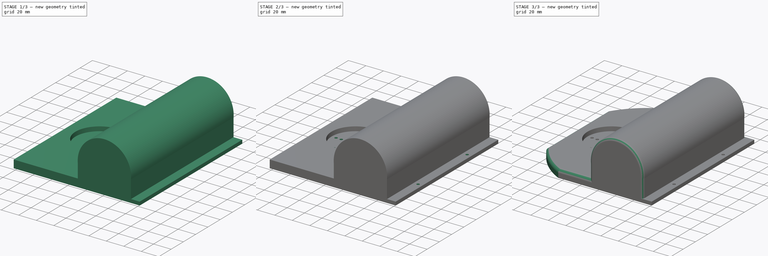
[diagram: build sequence overview — one tinted view per stage of 3, left to right]
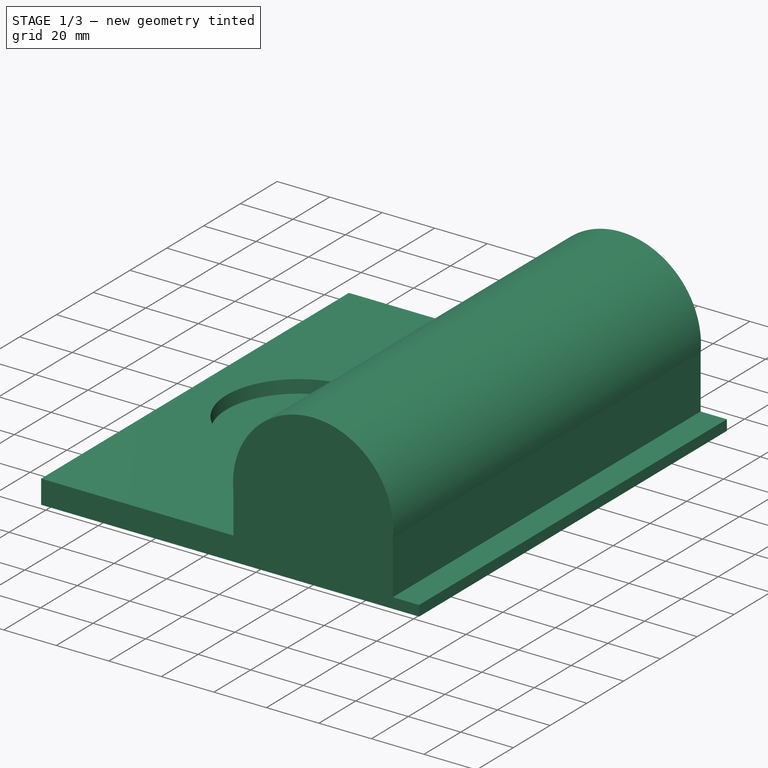
[diagram: stage 1 of 3 — iso view after this stage's code; geometry added in this stage tinted green]
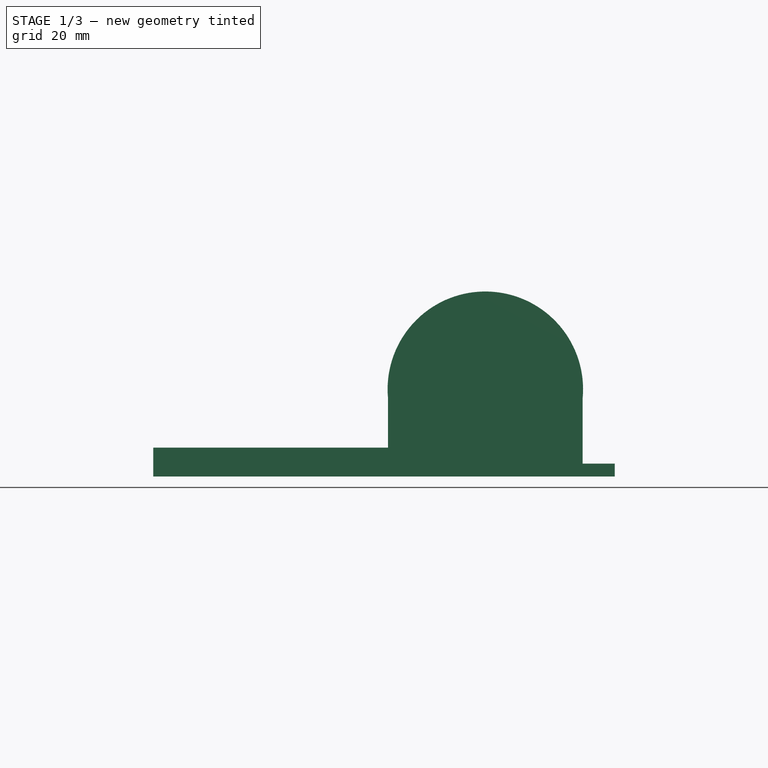
[diagram: stage 1 of 3 — front view after this stage's code; geometry added in this stage tinted green]
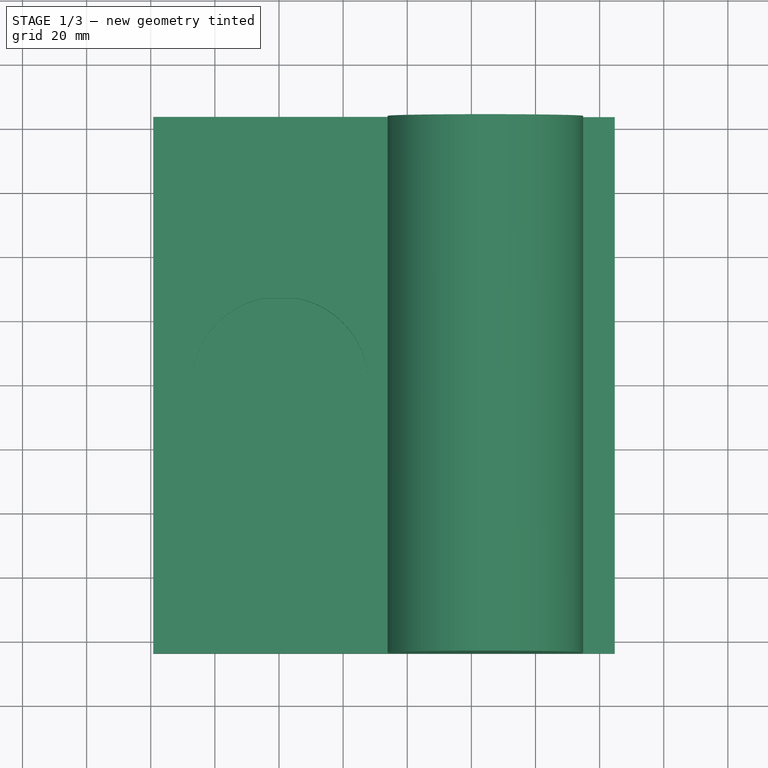
[diagram: stage 1 of 3 — top view after this stage's code; geometry added in this stage tinted green]
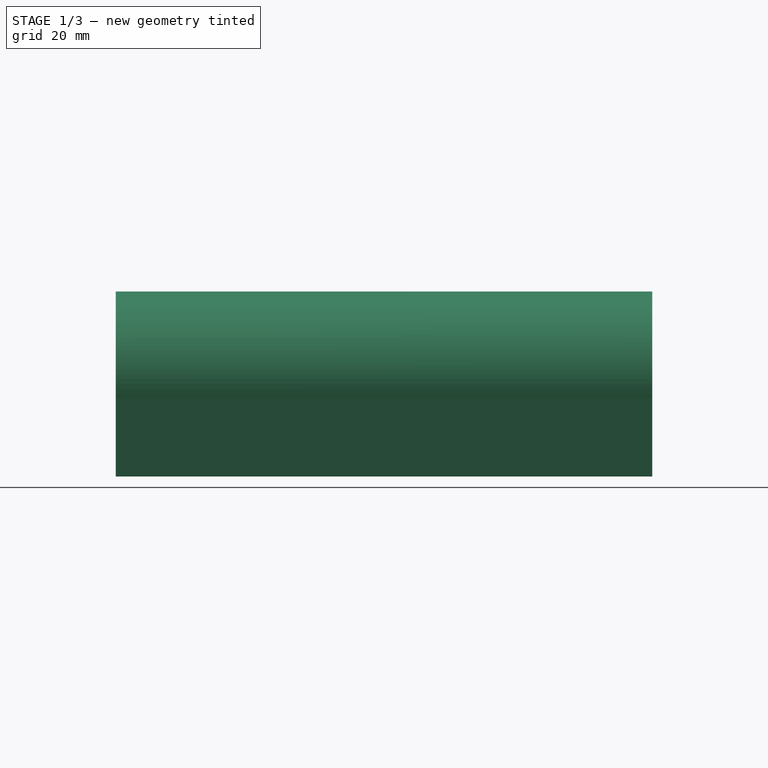
[diagram: stage 1 of 3 — right view after this stage's code; geometry added in this stage tinted green]
FCSTD DOCUMENT  (FreeCAD 0.20R29177 +426 (Git))
Label: base_weight_holder
License: All rights reserved
LicenseURL: http://en.wikipedia.org/wiki/All_rights_reserved
objects: Sketcher::SketchObject×6, PartDesign::Pocket×5, Spreadsheet::Sheet×3, PartDesign::Fillet×2, PartDesign::Pad×1, PartDesign::Body×1
note: 23 computed .brp shape members not serialized (recipe doc carries the construction recipe); baked Part::Feature solids carry a one-line shape summary decoded from their .brp
EXTERNAL_REF file=l_stick_end.FCStd obj=Sketch002

FEATURE [Spreadsheet::Sheet] Spreadsheet  label="weight_data"
  cells = A1=Name; B1=Value; A2=cap_xlen; B2(cap_xlen)==51.88mm; A3=cap_ylen; B3(cap_ylen)==48.1mm; A4=cap_zlen; B4(cap_zlen)==33.12mm; A5=shaft_dia; B5(shaft_dia)==28.84mm; A6=shaft_zlen; B6(shaft_zlen)==82.14mm; A7=full_zlen; B7(full_zlen)==154.15mm; A8=cap_top_xlen; B8(cap_top_xlen)==27.7mm; A9=space; B9(space)==0.6mm
FEATURE [Sketcher::SketchObject] Sketch
  FullyConstrained = true
  MapMode = 5
  Placement = pos=(0,0,0) rot=(1,0,0;1.5708rad)
  Support = -> [XZ_Plane]
  expr: .Constraints.curve_ylen = <<base_data>>.wall_thick / 2
  expr: .Constraints.in_mid_ylen = .Constraints.in_ylen / 2
  expr: .Constraints.in_xlen = <<weight_data>>.cap_ylen + <<weight_data>>.space
  expr: .Constraints.in_xlen_top = <<weight_data>>.cap_top_xlen + <<weight_data>>.space
  expr: .Constraints.in_ylen = <<weight_data>>.cap_ylen + <<weight_data>>.space
  expr: .Constraints.l_xlen = Sketch002.Constraints.full_xlen + <<base_data>>.wall_thick
  expr: .Constraints.r_pad_xlen = <<base_data>>.back_side_lip
  expr: .Constraints.thick_ylen = <<base_data>>.base_thick
  expr: .Constraints.wall_thick = <<base_data>>.wall_thick
  expr: Constraints[78] = <<base_data>>.small_base_thick
  sketch-geometry (29):
    g0: LineSegment StartX=0 StartY=0 StartZ=0 EndX=24.35 EndY=0 EndZ=0
    g1: LineSegment StartX=24.35 StartY=0 StartZ=0 EndX=48.7 EndY=0 EndZ=0
    g2: LineSegment StartX=24.35 StartY=0 StartZ=0 EndX=24.35 EndY=51.7 EndZ=0
    g3: LineSegment StartX=10.2 StartY=48.7 StartZ=0 EndX=24.35 EndY=48.7 EndZ=0
    g4: LineSegment StartX=38.5 StartY=48.7 StartZ=0 EndX=24.35 EndY=48.7 EndZ=0
    g5: LineSegment StartX=48.7 StartY=24.35 StartZ=0 EndX=0 EndY=24.35 EndZ=0
    g6: LineSegment StartX=48.7 StartY=0 StartZ=0 EndX=54.7 EndY=0 EndZ=0
    g7: ArcOfCircle CenterX=24.35 CenterY=27.2151 CenterZ=0 NormalX=0 NormalY=0 NormalZ=1 AngleXU=0 Radius=30.4849 StartAngle=6.18906 EndAngle=9.5189
    g8: LineSegment StartX=48.7 StartY=24.35 StartZ=0 EndX=54.7 EndY=24.35 EndZ=0
    g9: LineSegment StartX=0 StartY=24.35 StartZ=0 EndX=-6 EndY=24.35 EndZ=0
    g10: LineSegment StartX=24.35 StartY=51.7 StartZ=0 EndX=24.35 EndY=57.7 EndZ=0
    g11: LineSegment StartX=-6 StartY=24.35 StartZ=0 EndX=-6 EndY=9 EndZ=0
    g12: LineSegment StartX=-6 StartY=9 StartZ=0 EndX=-79.2077 EndY=9 EndZ=0
    g13: LineSegment StartX=-79.2077 StartY=0 StartZ=0 EndX=0 EndY=0 EndZ=0
    g14: LineSegment StartX=0 StartY=0 StartZ=0 EndX=0 EndY=24.35 EndZ=0
    g15: LineSegment StartX=48.7 StartY=0 StartZ=0 EndX=48.7 EndY=24.35 EndZ=0
    g16: ArcOfCircle CenterX=24.35 CenterY=16.8296 CenterZ=0 NormalX=0 NormalY=0 NormalZ=1 AngleXU=0 Radius=34.8704 StartAngle=1.15296 EndAngle=1.98864
    g17: LineSegment StartX=-6 StartY=9 StartZ=0 EndX=-6 EndY=0 EndZ=0
    g18: LineSegment StartX=-79.2077 StartY=9 StartZ=0 EndX=-79.2077 EndY=0 EndZ=0
    g19: GeomPoint X=24.35 Y=24.35 Z=0
    g20: LineSegment StartX=38.5 StartY=48.7 StartZ=0 EndX=48.7 EndY=24.35 EndZ=0
    g21: LineSegment StartX=10.2 StartY=48.7 StartZ=0 EndX=0 EndY=24.35 EndZ=0
    g22: LineSegment StartX=0 StartY=0 StartZ=0 EndX=48.7 EndY=0 EndZ=0
    g23: LineSegment StartX=54.7 StartY=0 StartZ=0 EndX=54.7 EndY=24.35 EndZ=0
    g24: LineSegment StartX=54.7 StartY=24.35 StartZ=0 EndX=54.7 EndY=4 EndZ=0
    g25: LineSegment StartX=54.7 StartY=4 StartZ=0 EndX=64.7 EndY=4 EndZ=0
    g26: LineSegment StartX=64.7 StartY=0 StartZ=0 EndX=54.7 EndY=0 EndZ=0
    g27: LineSegment StartX=64.7 StartY=4 StartZ=0 EndX=64.7 EndY=0 EndZ=0
    g28: LineSegment StartX=-79.2077 StartY=0 StartZ=0 EndX=-79.2077 EndY=9 EndZ=0
  constraints (82):
    c: Coincident(g0,g-1)
    c: PointOnObject(g0,g-1)
    c: Coincident(g1,g0)
    c: Coincident(g2,g0)
    c: Vertical(g2)
    c: PointOnObject(g5,g-2)
    c: PointOnObject(g3,g2)
    c: Horizontal(g3)
    c: Coincident(g4,g3)
    c: Horizontal(g4)
    c: DistanceY(g0,g3) = 48.7  'in_ylen'
    c: DistanceX(g0,g1) = 48.7  'in_xlen'
    c: Horizontal(g5)
    c: PointOnObject(g6,g-1)
    c: PointOnObject(g7,g2)
    c: Horizontal(g8)
    c: Coincident(g9,g7)
    c: Horizontal(g9)
    c: Coincident(g10,g2)
    c: PointOnObject(g10,g7)
    c: Vertical(g10)
    c: Equal(g10,g8)
    c: Coincident(g11,g7)
    c: Vertical(g11)
    c: Coincident(g12,g11)
    c: Horizontal(g12)
    c: PointOnObject(g13,g-1)
    c: Coincident(g14,g13)
    c: Coincident(g15,g6)
    c: Vertical(g15)
    c: Coincident(g6,g1)
    c: Coincident(g13,g0)
    c: Coincident(g5,g8)
    c: Coincident(g15,g5)
    c: Coincident(g14,g9)
    c: Coincident(g5,g9)
    c: PointOnObject(g16,g2)
    c: Coincident(g16,g3)
    c: Coincident(g16,g4)
    c: PointOnObject(g2,g16)
    c: DistanceX(g3,g4) = 28.3  'in_xlen_top'
    c: Coincident(g17,g11)
    c: PointOnObject(g17,g13)
    c: Vertical(g17)
    c: DistanceY(g17,g17) = 9  'thick_ylen'
    c: Coincident(g18,g12)
    c: Coincident(g18,g13)
    c: Vertical(g18)
    c: DistanceX(g6,g6) = 6  'wall_thick'
    c: DistanceY(g3,g2) = 3  'curve_ylen'
    c: PointOnObject(g19,g5)
    c: PointOnObject(g19,g2)
    c: DistanceY(g0,g19) = 24.35  'in_mid_ylen'
    c: Coincident(g20,g4)
    c: Coincident(g20,g5)
    c: Coincident(g21,g3)
    c: Coincident(g21,g5)
    c: Equal(g0,g1)
    c: PointOnObject(g6,g-1)
    c: Coincident(g22,g13)
    c: Coincident(g22,g6)
    c: Coincident(g7,g8)
    c: Coincident(g23,g6)
    c: Coincident(g7,g23)
    c: Vertical(g23)
    c: DistanceX(g13,g6) = 54.7  'end_ylen'
    c: Coincident(g24,g7)
    c: Coincident(g24,g25)
    c: Horizontal(g25)
    c: PointOnObject(g26,g-1)
    c: Coincident(g26,g6)
    c: Coincident(g27,g25)
    c: Coincident(g27,g26)
    c: Vertical(g27)
    c: DistanceX(g26,g26) = 10  'r_pad_xlen'
    c: DistanceX(g13,g26) = 143.908  'full_full_xlen'
    c: DistanceX(g12,g11) = 73.2077  'l_xlen'
    c: PointOnObject(g24,g23)
    c: DistanceY(g27,g27) = 4
    c: DistanceX(g13,g13) = 79.2077  'full_l_xlen'
    c: Coincident(g28,g13)
    c: Coincident(g28,g12)
FEATURE [PartDesign::Pad] Pad
  Direction = (0,-1,2e-16)
  Length = 167.35
  Length2 = 10
  Midplane = true
  Placement = pos=(0,0,0) rot=(1,0,0;1.5708rad)
  Profile = -> Sketch
  ReferenceAxis = -> Sketch [N_Axis]
  Type = 0
  expr: Length = <<weight_data>>.full_zlen + <<weight_data>>.space * 2 + <<base_data>>.wall_thick * 2
FEATURE [Spreadsheet::Sheet] Spreadsheet001  label="base_data"
  cells = A1=Name; B1=Value; A2=wall_thick; B2(wall_thick)==6mm; A3=base_thick; B3(base_thick)==9mm; A4=back_side_lip; B4(back_side_lip)==10mm; A5=small_base_thick; B5(small_base_thick)==4mm; A7=stick_cut; B7(stick_cut)==5mm; A8=r_hole_ylen; B8(r_hole_ylen)==40mm
FEATURE [Sketcher::SketchObject] Sketch001
  FullyConstrained = true
  MapMode = 5
  Placement = pos=(0,0,0) rot=(1,0,0;1.5708rad)
  Support = -> [XZ_Plane]
  expr: Constraints[11] = <<Sketch>>.Constraints.in_ylen
  expr: Constraints[17] = Sketch.Constraints.in_xlen_top
  expr: Constraints[29] = Sketch.Constraints.curve_ylen
  expr: Constraints[32] = Sketch.Constraints.in_mid_ylen
  expr: Constraints[6] = <<Sketch>>.Constraints.in_xlen
  expr: Constraints[8] = Sketch.Constraints.wall_thick
  sketch-geometry (14):
    g0: LineSegment StartX=0 StartY=0 StartZ=0 EndX=24.35 EndY=0 EndZ=0
    g1: LineSegment StartX=24.35 StartY=0 StartZ=0 EndX=48.7 EndY=0 EndZ=0
    g2: LineSegment StartX=48.7 StartY=0 StartZ=0 EndX=54.7 EndY=0 EndZ=0
    g3: LineSegment StartX=24.35 StartY=0 StartZ=0 EndX=24.35 EndY=48.7 EndZ=0
    g4: LineSegment StartX=24.35 StartY=48.7 StartZ=0 EndX=10.2 EndY=48.7 EndZ=0
    g5: LineSegment StartX=24.35 StartY=48.7 StartZ=0 EndX=38.5 EndY=48.7 EndZ=0
    g6: LineSegment StartX=48.7 StartY=0 StartZ=0 EndX=0 EndY=0 EndZ=0
    g7: LineSegment StartX=0 StartY=0 StartZ=0 EndX=0 EndY=24.35 EndZ=0
    g8: LineSegment StartX=48.7 StartY=0 StartZ=0 EndX=48.7 EndY=24.35 EndZ=0
    g9: LineSegment StartX=0 StartY=24.35 StartZ=0 EndX=48.7 EndY=24.35 EndZ=0
    g10: ArcOfCircle CenterX=24.35 CenterY=16.8296 CenterZ=0 NormalX=0 NormalY=0 NormalZ=1 AngleXU=0 Radius=34.8704 StartAngle=1.15296 EndAngle=1.98864
    g11: LineSegment StartX=24.35 StartY=48.7 StartZ=0 EndX=24.35 EndY=51.7 EndZ=0
    g12: LineSegment StartX=38.5 StartY=48.7 StartZ=0 EndX=48.7 EndY=24.35 EndZ=0
    g13: LineSegment StartX=10.2 StartY=48.7 StartZ=0 EndX=0 EndY=24.35 EndZ=0
  constraints (38):
    c: Horizontal(g0)
    c: Coincident(g1,g0)
    c: PointOnObject(g1,g-1)
    c: Coincident(g2,g1)
    c: Horizontal(g2)
    c: Equal(g0,g1)
    c: DistanceX(g0,g1) = 48.7
    c: Coincident(g0,g-1)
    c: DistanceX(g2,g2) = 6
    c: Coincident(g3,g0)
    c: Vertical(g3)
    c: DistanceY(g3,g3) = 48.7
    c: Coincident(g4,g3)
    c: Horizontal(g4)
    c: Coincident(g5,g3)
    c: Horizontal(g5)
    c: Equal(g5,g4)
    c: DistanceX(g4,g5) = 28.3
    c: Coincident(g6,g1)
    c: Coincident(g6,g0)
    c: Coincident(g7,g6)
    c: PointOnObject(g7,g-2)
    c: Coincident(g8,g6)
    c: Vertical(g8)
    c: Coincident(g9,g8)
    c: Horizontal(g9)
    c: Coincident(g11,g3)
    c: PointOnObject(g11,g10)
    c: Vertical(g11)
    c: DistanceY(g11,g11) = 3
    c: Coincident(g10,g5)
    c: Coincident(g10,g4)
    c: DistanceY(g7,g7) = 24.35
    c: Coincident(g7,g9)
    c: Coincident(g12,g10)
    c: Coincident(g12,g8)
    c: Coincident(g13,g10)
    c: Coincident(g13,g7)
FEATURE [PartDesign::Pocket] Pocket
  BaseFeature = -> Pad
  Direction = (0,1,-2e-16)
  Length = 155.95
  Length2 = 5
  Midplane = true
  Placement = pos=(0,0,0) rot=(1,0,0;1.5708rad)
  Profile = -> Sketch001
  ReferenceAxis = -> Sketch001 [N_Axis]
  Type = 0
  expr: Length = <<weight_data>>.full_zlen + <<weight_data>>.space * 3
FEATURE [Sketcher::SketchObject] Sketch002
  AttachmentOffset = pos=(0,0,9) rot=(0,0,1;0rad)
  FullyConstrained = true
  MapMode = 5
  Placement = pos=(0,0,9) rot=(0,0,1;0rad)
  Support = -> [XY_Plane]
  expr: .AttachmentOffset.Base.z = <<base_data>>.base_thick
  expr: .Constraints.wall_space = <<base_data>>.wall_thick * 2
  expr: Constraints[15] = l_stick_end#Sketch002.Constraints.thick_ylen + <<weight_data>>.space
  expr: Constraints[17] = 53mm + <<weight_data>>.space * 2
  sketch-geometry (11):
    g0: LineSegment StartX=0 StartY=0 StartZ=0 EndX=-12 EndY=0 EndZ=0
    g1: LineSegment StartX=-12 StartY=0 StartZ=0 EndX=-39.6038 EndY=0 EndZ=0
    g2: LineSegment StartX=-67.2077 StartY=0 StartZ=0 EndX=-39.6038 EndY=0 EndZ=0
    g3: LineSegment StartX=-34.3538 StartY=27.1 StartZ=0 EndX=-34.3538 EndY=-27.1 EndZ=0
    g4: LineSegment StartX=-34.3538 StartY=27.1 StartZ=0 EndX=-39.6038 EndY=27.1 EndZ=0
    g5: LineSegment StartX=-39.6038 StartY=27.1 StartZ=0 EndX=-44.8538 EndY=27.1 EndZ=0
    g6: LineSegment StartX=-39.6038 StartY=0 StartZ=0 EndX=-39.6038 EndY=27.1 EndZ=0
    g7: LineSegment StartX=-44.8538 StartY=-27.1 StartZ=0 EndX=-34.3538 EndY=-27.1 EndZ=0
    g8: LineSegment StartX=-44.8538 StartY=27.1 StartZ=0 EndX=-44.8538 EndY=-27.1 EndZ=0
    g9: ArcOfCircle CenterX=-39.6038 CenterY=0 CenterZ=0 NormalX=0 NormalY=0 NormalZ=1 AngleXU=0 Radius=27.6038 StartAngle=1.76215 EndAngle=4.52103
    g10: ArcOfCircle CenterX=-39.6038 CenterY=0 CenterZ=0 NormalX=0 NormalY=0 NormalZ=1 AngleXU=0 Radius=27.6038 StartAngle=4.90375 EndAngle=7.66263
  constraints (32):
    c: Coincident(g0,g-1)
    c: PointOnObject(g0,g-1)
    c: Coincident(g1,g0)
    c: PointOnObject(g1,g-1)
    c: PointOnObject(g2,g-1)
    c: Coincident(g2,g1)
    c: Equal(g1,g2)
    c: Vertical(g3)
    c: Horizontal(g4)
    c: Coincident(g5,g4)
    c: Horizontal(g5)
    c: Coincident(g6,g1)
    c: Coincident(g6,g4)
    c: Vertical(g6)
    c: Equal(g5,g4)
    c: DistanceX(g4,g4) = 5.25
    c: Vertical(g8)
    c: DistanceY(g8,g8) = 54.2
    c: Coincident(g8,g5)
    c: Coincident(g8,g7)
    c: DistanceX(g0,g0) = 12  'wall_space'
    c: DistanceX(g2,g0) = 67.2077  'full_xlen'
    c: DistanceX(g2,g0) = 55.2077  'in_xlen'
    c: Coincident(g9,g1)
    c: Coincident(g9,g5)
    c: Coincident(g9,g7)
    c: Coincident(g3,g4)
    c: Coincident(g7,g3)
    c: Coincident(g10,g9)
    c: Coincident(g10,g4)
    c: Coincident(g10,g7)
    c: PointOnObject(g0,g10)
FEATURE [Spreadsheet::Sheet] Spreadsheet002  label="libre_data"
  cells = A1=Name; B1=Value; A2=full_xlen; B2(full_xlen)==57.3mm; A3=full_ylen; B3(full_ylen)==102mm; A4=dist_xlen_hole; B4(dist_xlen_hole)==51.46mm; C4=taken end to end not center; A5=hole_dia; B5(hole_dia)==2.8mm; A6=space; B6(space)==0.4mm; A7=dist_ylen_hole; B7(dist_ylen_hole)==60.58mm
FEATURE [PartDesign::Pocket] Pocket001
  BaseFeature = -> Pocket
  Direction = (0,0,-1)
  Length = 5
  Length2 = 5
  Placement = pos=(0,0,0) rot=(1,0,0;1.5708rad)
  Profile = -> Sketch002
  ReferenceAxis = -> Sketch002 [N_Axis]
  Type = 0
  expr: Length = <<base_data>>.stick_cut
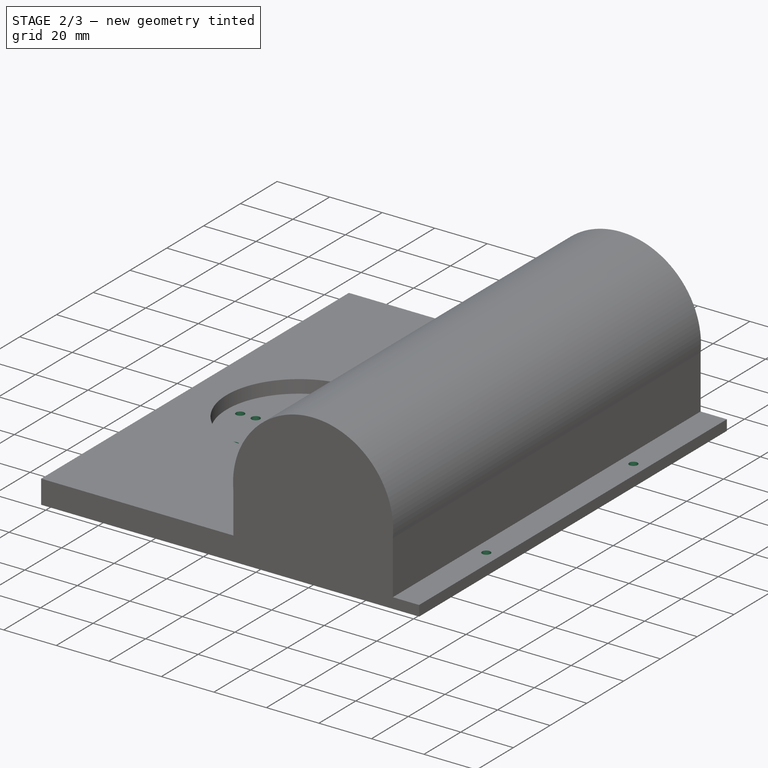
[diagram: stage 2 of 3 — iso view after this stage's code; geometry added in this stage tinted green]
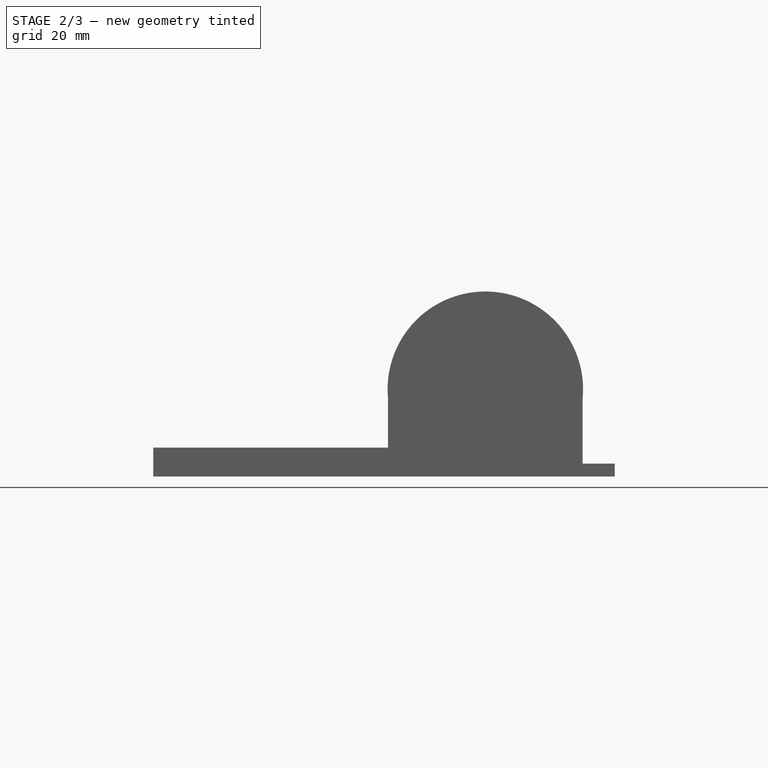
[diagram: stage 2 of 3 — front view after this stage's code; geometry added in this stage tinted green]
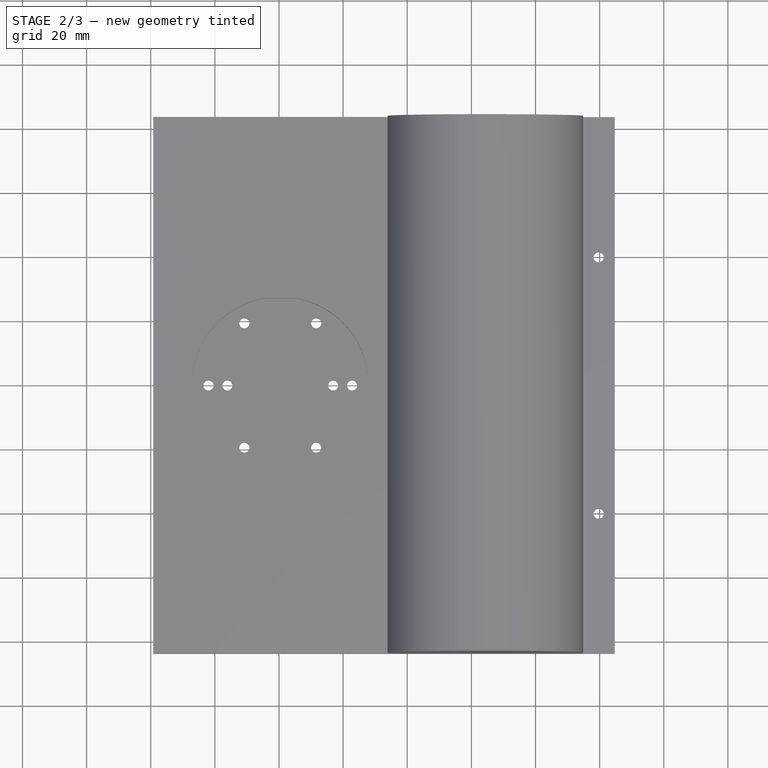
[diagram: stage 2 of 3 — top view after this stage's code; geometry added in this stage tinted green]
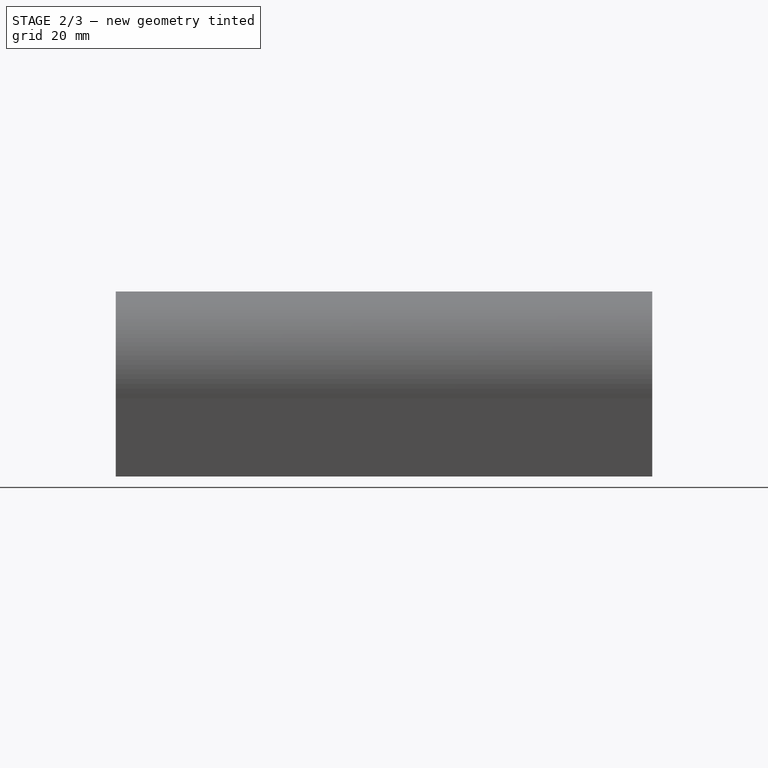
[diagram: stage 2 of 3 — right view after this stage's code; geometry added in this stage tinted green]
FEATURE [Sketcher::SketchObject] Sketch003
  FullyConstrained = true
  MapMode = 5
  Support = -> [XY_Plane]
  expr: .Constraints.dia = <<l_stick_end>>#<<Sketch002>>.Constraints.hole_dia
  expr: .Constraints.dist_down = <<l_stick_end>>#<<Sketch002>>.Constraints.dist_down
  expr: .Constraints.l_angle = <<l_stick_end>>#<<Sketch002>>.Constraints.l_angle
  expr: Constraints[13] = 53mm
  expr: Constraints[20] = l_stick_end#Sketch002.Constraints.thick_ylen
  expr: Constraints[34] = .Constraints.l_angle
  expr: Constraints[35] = .Constraints.l_angle
  expr: Constraints[36] = .Constraints.l_angle
  expr: Constraints[46] = .Constraints.dist_down
  expr: Constraints[47] = .Constraints.dist_down
  expr: Constraints[48] = .Constraints.dist_down
  expr: Constraints[58] = .Constraints.dist_down
  expr: Constraints[60] = .Constraints.dist_down
  expr: Constraints[61] = <<l_stick_end>>#<<Sketch002>>.Constraints.dist_holes_ylen
  expr: Constraints[62] = <<l_stick_end>>#<<Sketch002>>.Constraints.dist_holes_ylen
  expr: Constraints[7] = Sketch002.Constraints.wall_space
  expr: Constraints[8] = Sketch002.Constraints.in_xlen
  sketch-geometry (27):
    g0: LineSegment StartX=0 StartY=0 StartZ=0 EndX=-12 EndY=0 EndZ=0
    g1: LineSegment StartX=-12 StartY=0 StartZ=0 EndX=-39.6038 EndY=0 EndZ=0
    g2: LineSegment StartX=-39.6038 StartY=0 StartZ=0 EndX=-67.2077 EndY=0 EndZ=0
    g3: LineSegment StartX=-39.6038 StartY=0 StartZ=0 EndX=-39.6038 EndY=26.5 EndZ=0
    g4: LineSegment StartX=-39.6038 StartY=0 StartZ=0 EndX=-39.6038 EndY=-26.5 EndZ=0
    g5: LineSegment StartX=-39.6038 StartY=26.5 StartZ=0 EndX=-44.2538 EndY=26.5 EndZ=0
    g6: LineSegment StartX=-39.6038 StartY=26.5 StartZ=0 EndX=-34.9538 EndY=26.5 EndZ=0
    g7: LineSegment StartX=-39.6038 StartY=-26.5 StartZ=0 EndX=-34.9538 EndY=-26.5 EndZ=0
    g8: LineSegment StartX=-39.6038 StartY=-26.5 StartZ=0 EndX=-44.2538 EndY=-26.5 EndZ=0
    g9: LineSegment StartX=-44.2538 StartY=26.5 StartZ=0 EndX=-44.2538 EndY=-26.5 EndZ=0
    g10: LineSegment StartX=-34.9538 StartY=26.5 StartZ=0 EndX=-34.9538 EndY=-26.5 EndZ=0
    g11: LineSegment StartX=-39.6038 StartY=0 StartZ=0 EndX=-53.0563 EndY=-23.3003 EndZ=0
    g12: LineSegment StartX=-39.6038 StartY=0 StartZ=0 EndX=-53.0563 EndY=23.3003 EndZ=0
    g13: LineSegment StartX=-39.6038 StartY=0 StartZ=0 EndX=-26.1514 EndY=23.3003 EndZ=0
    g14: LineSegment StartX=-39.6038 StartY=0 StartZ=0 EndX=-26.1514 EndY=-23.3003 EndZ=0
    g15: Circle CenterX=-50.8063 CenterY=-19.4032 CenterZ=0 NormalX=0 NormalY=0 NormalZ=1 AngleXU=0 Radius=1.58
    g16: Circle CenterX=-28.4014 CenterY=-19.4032 CenterZ=0 NormalX=0 NormalY=0 NormalZ=1 AngleXU=0 Radius=1.58
    g17: Circle CenterX=-28.4014 CenterY=19.4032 CenterZ=0 NormalX=0 NormalY=0 NormalZ=1 AngleXU=0 Radius=1.58
    g18: Circle CenterX=-50.8063 CenterY=19.4032 CenterZ=0 NormalX=0 NormalY=0 NormalZ=1 AngleXU=0 Radius=1.58
    g19: Circle CenterX=-62.0087 CenterY=0 CenterZ=0 NormalX=0 NormalY=0 NormalZ=1 AngleXU=0 Radius=1.58
    g20: Circle CenterX=-56.1087 CenterY=0 CenterZ=0 NormalX=0 NormalY=0 NormalZ=1 AngleXU=0 Radius=1.58
    g21: Circle CenterX=-17.199 CenterY=0 CenterZ=0 NormalX=0 NormalY=0 NormalZ=1 AngleXU=0 Radius=1.58
    g22: Circle CenterX=-23.099 CenterY=0 CenterZ=0 NormalX=0 NormalY=0 NormalZ=1 AngleXU=0 Radius=1.58
    g23: GeomPoint X=-66.5087 Y=0 Z=0
    g24: GeomPoint X=-12.699 Y=0 Z=0
    g25: ArcOfCircle CenterX=-39.6038 CenterY=0 CenterZ=0 NormalX=0 NormalY=0 NormalZ=1 AngleXU=0 Radius=26.9049 StartAngle=1.7445 EndAngle=4.53869
    g26: ArcOfCircle CenterX=-39.6038 CenterY=0 CenterZ=0 NormalX=0 NormalY=0 NormalZ=1 AngleXU=0 Radius=26.9049 StartAngle=4.88609 EndAngle=7.68028
  constraints (75):
    c: Coincident(g0,g-1)
    c: PointOnObject(g0,g-1)
    c: Coincident(g1,g0)
    c: PointOnObject(g1,g-1)
    c: Coincident(g2,g1)
    c: PointOnObject(g2,g-1)
    c: Equal(g2,g1)
    c: DistanceX(g0,g0) = 12
    c: DistanceX(g2,g0) = 55.2077
    c: Coincident(g3,g1)
    c: Vertical(g3)
    c: Coincident(g4,g1)
    c: Vertical(g4)
    c: DistanceY(g4,g3) = 53
    c: Equal(g3,g4)
    c: Coincident(g5,g3)
    c: Horizontal(g5)
    c: Coincident(g6,g3)
    c: Horizontal(g6)
    c: Equal(g5,g6)
    c: DistanceX(g6,g6) = 4.65
    c: Coincident(g7,g4)
    c: Horizontal(g7)
    c: Coincident(g8,g4)
    c: Horizontal(g8)
    c: Coincident(g9,g5)
    c: Coincident(g9,g8)
    c: Coincident(g10,g6)
    c: Coincident(g10,g7)
    c: Coincident(g11,g1)
    c: Coincident(g12,g1)
    c: Coincident(g13,g1)
    c: Coincident(g14,g1)
    c: Angle(g11,g4) = 0.523599  'l_angle'
    c: Angle(g4,g14) = 0.523599
    c: Angle(g3,g12) = 0.523599
    c: Angle(g13,g3) = 0.523599
    c: PointOnObject(g15,g11)
    c: PointOnObject(g16,g14)
    c: PointOnObject(g17,g13)
    c: PointOnObject(g18,g12)
    c: Equal(g18,g17)
    c: Equal(g17,g16)
    c: Equal(g16,g15)
    c: Diameter(g15) = 3.16  'dia'
    c: Distance(g15,g11) = 4.5  'dist_down'
    c: Distance(g16,g14) = 4.5
    c: Distance(g13,g17) = 4.5
    c: Distance(g12,g18) = 4.5
    c: PointOnObject(g19,g2)
    c: PointOnObject(g20,g2)
    c: PointOnObject(g21,g1)
    c: PointOnObject(g22,g1)
    c: Equal(g22,g21)
    c: Equal(g22,g20)
    c: Equal(g20,g19)
    c: Equal(g15,g19)
    c: PointOnObject(g23,g2)
    c: DistanceX(g23,g19) = 4.5
    c: PointOnObject(g24,g1)
    c: DistanceX(g21,g24) = 4.5
    c: DistanceX(g22,g21) = 5.9
    c: DistanceX(g19,g20) = 5.9
    c: Coincident(g25,g1)
    c: Coincident(g25,g5)
    c: Coincident(g25,g8)
    c: Coincident(g26,g1)
    c: Coincident(g26,g6)
    c: Coincident(g26,g7)
    c: PointOnObject(g24,g26)
    c: PointOnObject(g23,g25)
    c: PointOnObject(g11,g25)
    c: PointOnObject(g14,g26)
    c: PointOnObject(g13,g26)
    c: PointOnObject(g12,g25)
FEATURE [PartDesign::Pocket] Pocket002
  BaseFeature = -> Pocket001
  Direction = (0,0,-1)
  Length = 5
  Length2 = 5
  Placement = pos=(0,0,0) rot=(1,0,0;1.5708rad)
  Profile = -> Sketch003
  ReferenceAxis = -> Sketch003 [N_Axis]
  Reversed = true
  Type = 1
FEATURE [Sketcher::SketchObject] Sketch004
  FullyConstrained = true
  MapMode = 5
  Support = -> [XY_Plane]
  expr: Constraints[12] = <<Sketch003>>.Constraints.dia
  expr: Constraints[7] = Sketch.Constraints.end_ylen + Sketch.Constraints.r_pad_xlen / 2
  expr: Constraints[8] = <<base_data>>.r_hole_ylen
  sketch-geometry (5):
    g0: LineSegment StartX=0 StartY=0 StartZ=0 EndX=59.7 EndY=0 EndZ=0
    g1: LineSegment StartX=59.7 StartY=0 StartZ=0 EndX=59.7 EndY=-40 EndZ=0
    g2: LineSegment StartX=59.7 StartY=0 StartZ=0 EndX=59.7 EndY=40 EndZ=0
    g3: Circle CenterX=59.7 CenterY=40 CenterZ=0 NormalX=0 NormalY=0 NormalZ=1 AngleXU=0 Radius=1.58
    g4: Circle CenterX=59.7 CenterY=-40 CenterZ=0 NormalX=0 NormalY=0 NormalZ=1 AngleXU=0 Radius=1.58
  constraints (13):
    c: Coincident(g0,g-1)
    c: PointOnObject(g0,g-1)
    c: Coincident(g1,g0)
    c: Vertical(g1)
    c: Coincident(g2,g0)
    c: Vertical(g2)
    c: Equal(g2,g1)
    c: DistanceX(g0,g0) = 59.7
    c: DistanceY(g2,g2) = 40
    c: Coincident(g3,g2)
    c: Coincident(g4,g1)
    c: Equal(g4,g3)
    c: Diameter(g3) = 3.16
FEATURE [PartDesign::Pocket] Pocket003
  BaseFeature = -> Pocket002
  Direction = (0,0,-1)
  Length = 5
  Length2 = 5
  Placement = pos=(0,0,0) rot=(1,0,0;1.5708rad)
  Profile = -> Sketch004
  ReferenceAxis = -> Sketch004 [N_Axis]
  Reversed = true
  Type = 1
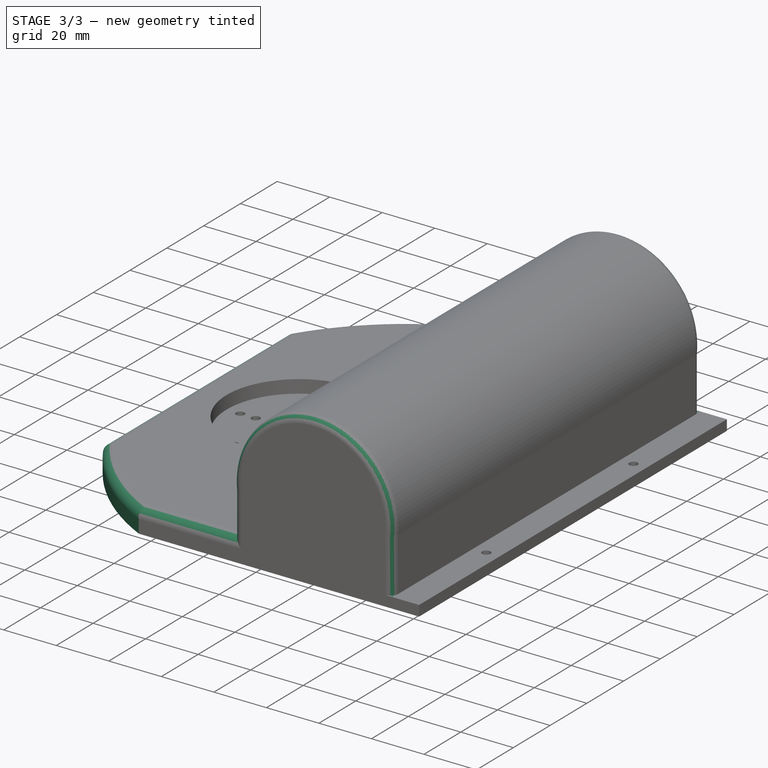
[diagram: stage 3 of 3 — iso view after this stage's code; geometry added in this stage tinted green]
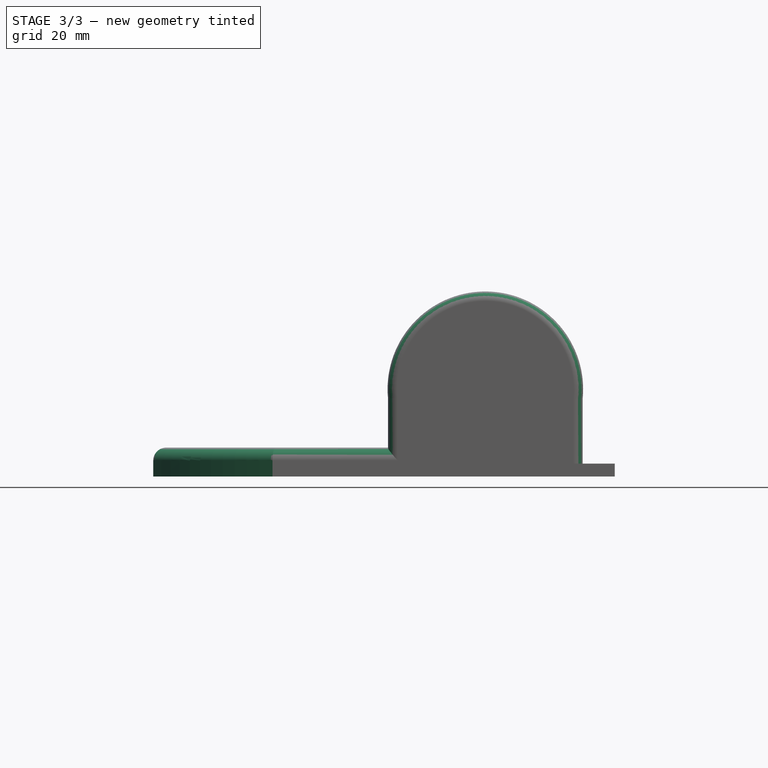
[diagram: stage 3 of 3 — front view after this stage's code; geometry added in this stage tinted green]
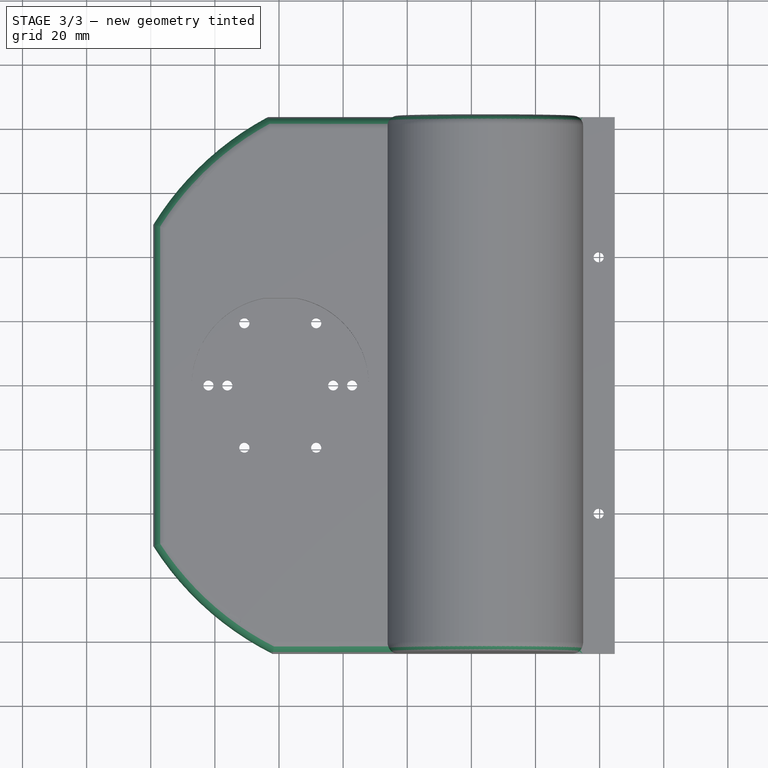
[diagram: stage 3 of 3 — top view after this stage's code; geometry added in this stage tinted green]
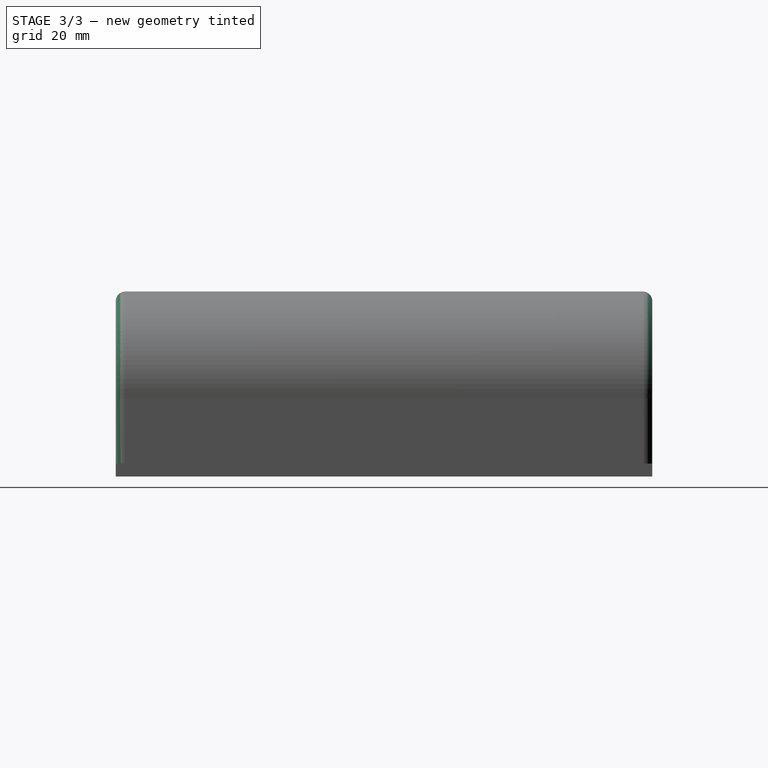
[diagram: stage 3 of 3 — right view after this stage's code; geometry added in this stage tinted green]
FEATURE [Sketcher::SketchObject] Sketch005
  FullyConstrained = false
  MapMode = 5
  Support = -> [XY_Plane]
  expr: Constraints[36] = <<base_data>>.wall_thick
  expr: Constraints[9] = Sketch.Constraints.full_l_xlen
  sketch-geometry (15):
    g0: LineSegment StartX=0 StartY=0 StartZ=0 EndX=-79.2077 EndY=0 EndZ=0
    g1: LineSegment StartX=-79.2077 StartY=0 StartZ=0 EndX=-79.2077 EndY=50.0645 EndZ=0
    g2: LineSegment StartX=-79.2077 StartY=0 StartZ=0 EndX=-79.2077 EndY=-50.0645 EndZ=0
    g3: ArcOfCircle CenterX=-0.163038 CenterY=0.0043389 CenterZ=0 NormalX=0 NormalY=0 NormalZ=1 AngleXU=0 Radius=93.5679 StartAngle=3.70623 EndAngle=4.64997
    g4: ArcOfCircle CenterX=0.662285 CenterY=0.9037 CenterZ=0 NormalX=0 NormalY=0 NormalZ=1 AngleXU=0 Radius=93.787 StartAngle=1.64189 EndAngle=2.58985
    g5: LineSegment StartX=-79.2077 StartY=-50.0645 StartZ=0 EndX=-107.36 EndY=-50.0645 EndZ=0
    g6: LineSegment StartX=-107.36 StartY=-50.0645 StartZ=0 EndX=-107.36 EndY=-112.067 EndZ=0
    g7: LineSegment StartX=-6 StartY=-93.3813 StartZ=0 EndX=-6 EndY=-112.067 EndZ=0
    g8: LineSegment StartX=-107.36 StartY=-112.067 StartZ=0 EndX=-6 EndY=-112.067 EndZ=0
    g9: LineSegment StartX=-79.2077 StartY=50.0645 StartZ=0 EndX=-107.36 EndY=50.0645 EndZ=0
    g10: LineSegment StartX=-107.36 StartY=50.0645 StartZ=0 EndX=-107.36 EndY=113.139 EndZ=0
    g11: LineSegment StartX=-6 StartY=94.4538 StartZ=0 EndX=-6 EndY=113.139 EndZ=0
    g12: LineSegment StartX=-6 StartY=113.139 StartZ=0 EndX=-107.36 EndY=113.139 EndZ=0
    g13: LineSegment StartX=-6 StartY=94.4538 StartZ=0 EndX=-6 EndY=-93.3813 EndZ=0
    g14: LineSegment StartX=-6 StartY=-112.067 StartZ=0 EndX=0 EndY=-112.067 EndZ=0
  constraints (37):
    c: Coincident(g0,g-1)
    c: PointOnObject(g0,g-1)
    c: Coincident(g1,g0)
    c: Vertical(g1)
    c: Coincident(g2,g0)
    c: Vertical(g2)
    c: Equal(g1,g2)
    c: Coincident(g3,g2)
    c: Coincident(g4,g1)
    c: DistanceX(g0,g0) = 79.2077
    c: Coincident(g5,g3)
    c: Coincident(g6,g5)
    c: Vertical(g6)
    c: Coincident(g7,g3)
    c: Coincident(g8,g6)
    c: Coincident(g8,g7)
    c: Horizontal(g8)
    c: Horizontal(g5)
    c: Coincident(g9,g4)
    c: Horizontal(g9)
    c: Coincident(g10,g9)
    c: Vertical(g10)
    c: Coincident(g11,g4)
    c: Coincident(g12,g11)
    c: Coincident(g12,g10)
    c: Horizontal(g12)
    c: Equal(g11,g7)
    c: Equal(g9,g5)
    c: Coincident(g13,g4)
    c: Coincident(g13,g3)
    c: Vertical(g13)
    c: Vertical(g7)
    c: Vertical(g11)
    c: Coincident(g14,g7)
    c: PointOnObject(g14,g-2)
    c: Horizontal(g14)
    c: DistanceX(g14,g14) = 6
FEATURE [PartDesign::Pocket] Pocket004
  BaseFeature = -> Pocket003
  Direction = (0,0,-1)
  Length = 5
  Length2 = 5
  Placement = pos=(0,0,0) rot=(1,0,0;1.5708rad)
  Profile = -> Sketch005
  ReferenceAxis = -> Sketch005 [N_Axis]
  Reversed = true
  Type = 1
FEATURE [PartDesign::Fillet] Fillet
  Base = -> Pocket004 [Edge46,Edge44,Edge48,Edge18,Edge28]
  BaseFeature = -> Pocket004
  Placement = pos=(0,0,0) rot=(1,0,0;1.5708rad)
  Radius = 4
  SupportTransform = false
  UseAllEdges = false
FEATURE [PartDesign::Fillet] Fillet001
  Base = -> Fillet [Edge30,Edge61]
  BaseFeature = -> Fillet
  Placement = pos=(0,0,0) rot=(1,0,0;1.5708rad)
  Radius = 3
  SupportTransform = false
  UseAllEdges = false
FEATURE [PartDesign::Body] Body
  Group = -> [Sketch002,Sketch,Pad,Sketch001,Pocket,Pocket001,Sketch003,Pocket002,Sketch004,Pocket003,Sketch005,Pocket004,Fillet,Fillet001]
  Origin = -> Origin
  Tip = -> Fillet001
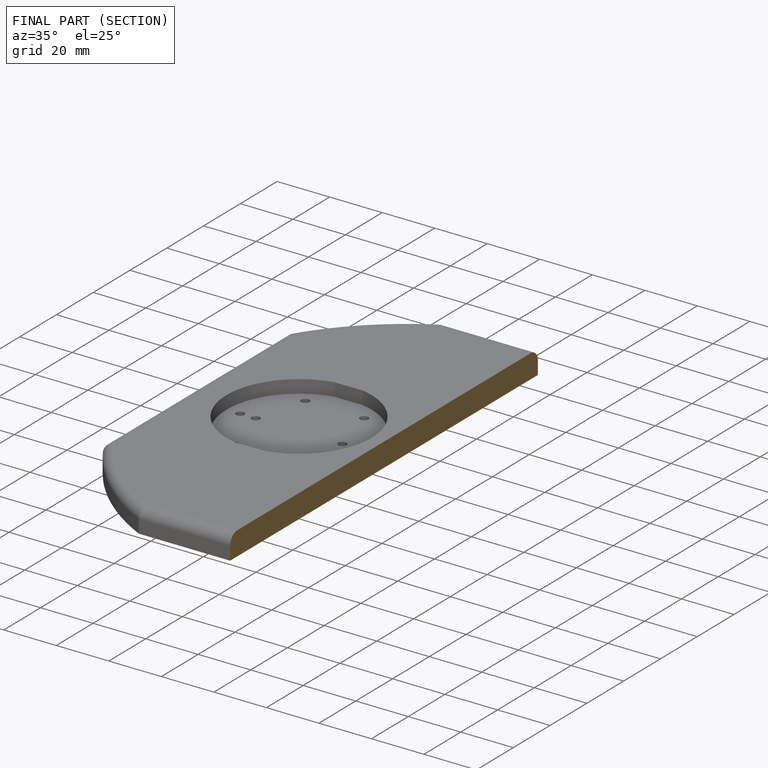
[diagram: finished part — half-section view (interior)]
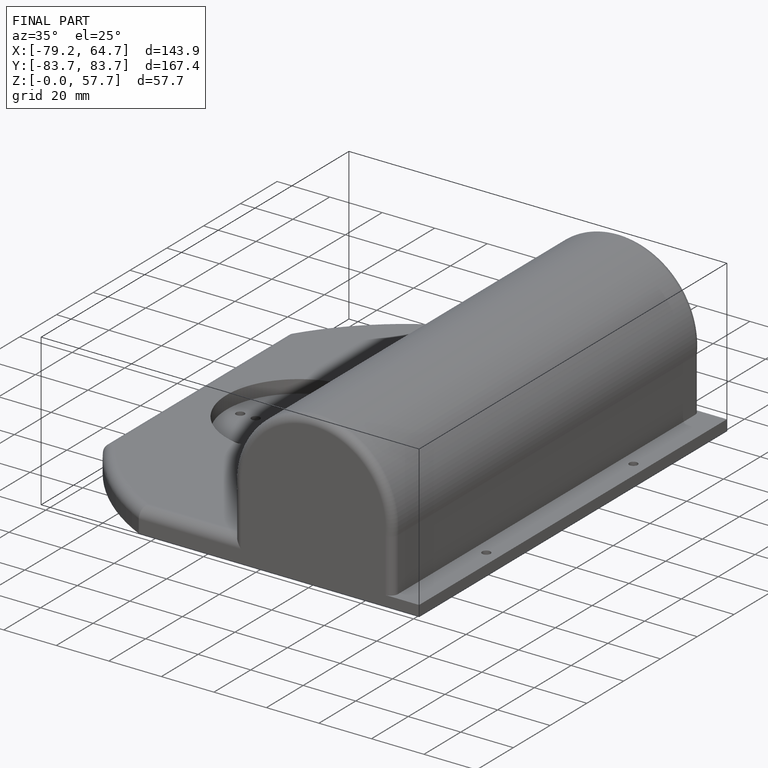
[diagram: finished part — iso view with bounding-box wireframe]
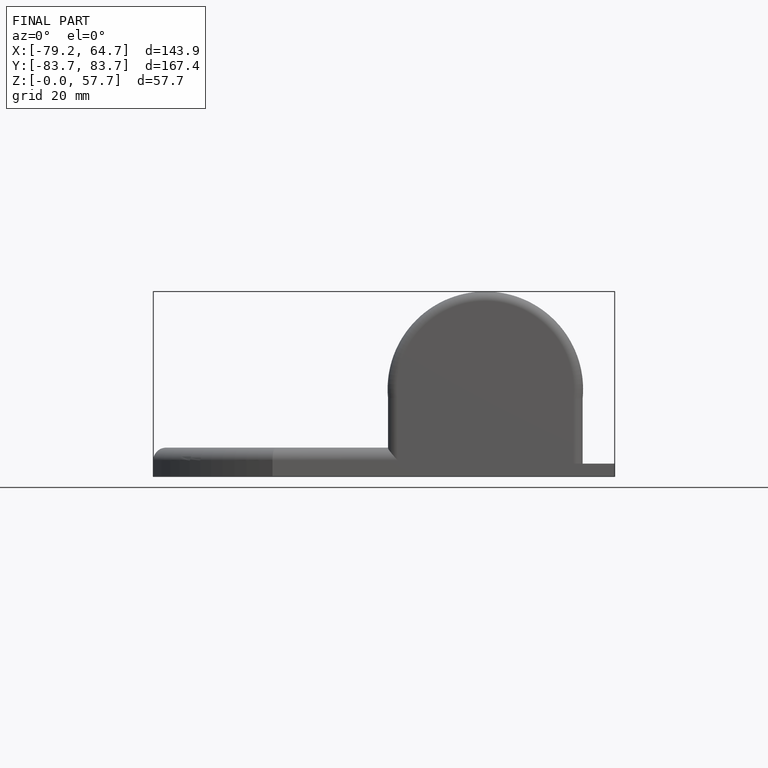
[diagram: finished part — front view with bounding-box wireframe]
